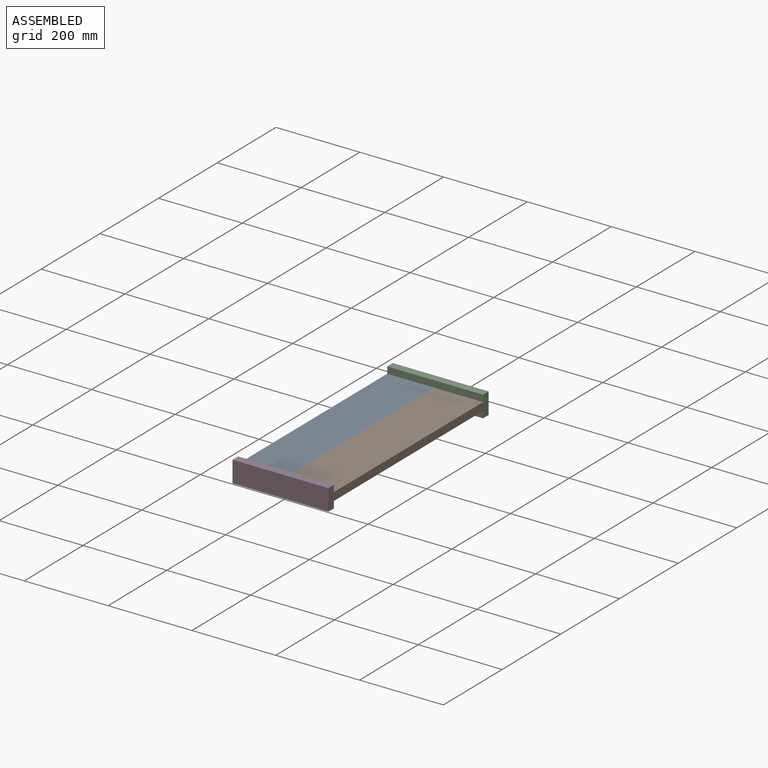
[diagram: assembled view]
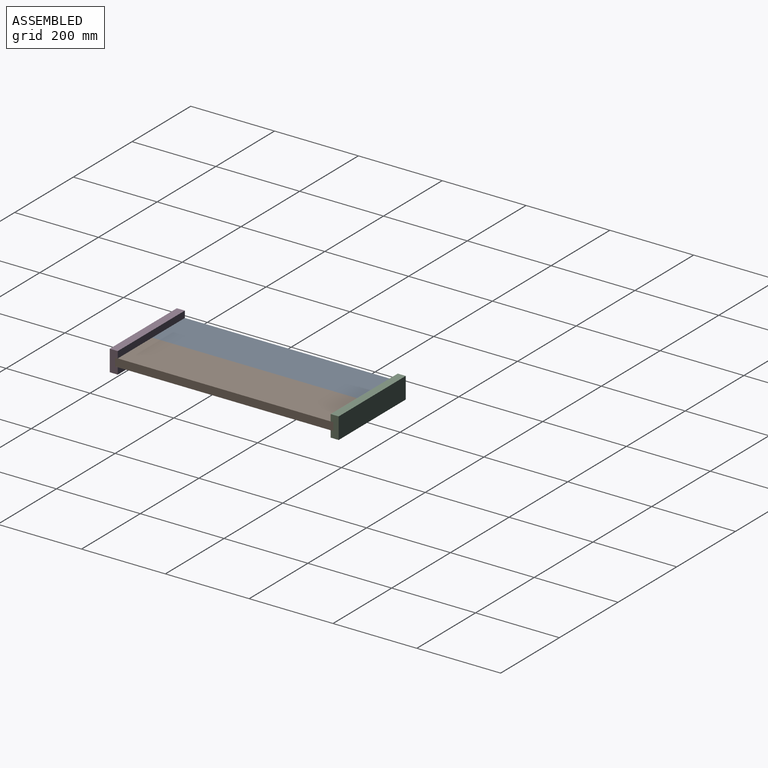
[diagram: assembled view, second angle]
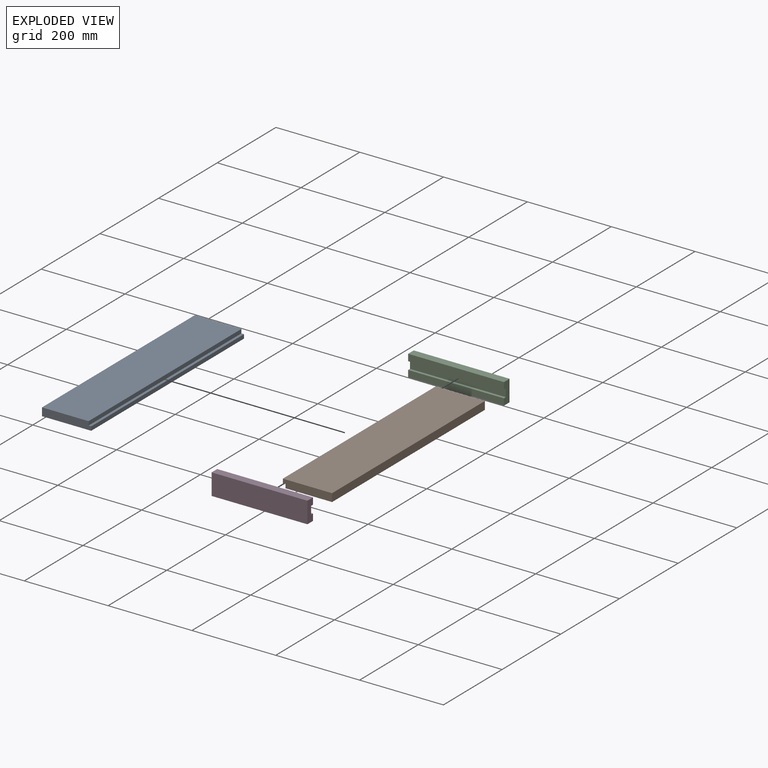
[diagram: exploded view]
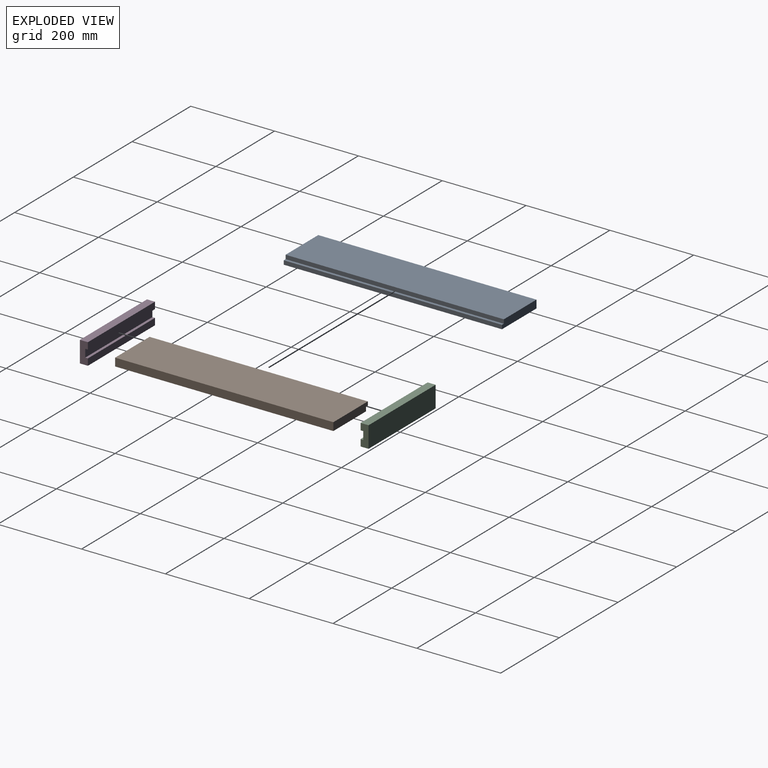
[diagram: exploded view, second angle]
ASSEMBLY  parts=4 mates=3
PART A: 8 faces, bbox 117.5x520.7x19.1 mm
  f0: plane 520.7x19.05mm, normal (1,0,0), area 9919.3mm2, adj f1,f5,f6,f7
  f1: plane 520.7x117.48mm, normal (0,0,1), area 61169.2mm2, adj f0,f2,f6,f7
  f2: plane 520.7x9.53mm, normal (-1,0,0), area 4959.7mm2, adj f1,f3,f6,f7
  f3: plane 520.7x6.35mm, normal (0,0,-1), area 3306.4mm2, adj f2,f4,f6,f7
  f4: plane 520.7x9.53mm, normal (-1,0,0), area 4959.7mm2, adj f3,f5,f6,f7
  f5: plane 520.7x111.13mm, normal (0,0,-1), area 57862.8mm2, adj f0,f4,f6,f7
  f6: plane 117.48x19.05mm, normal (0,1,0), area 2177.4mm2, adj f0,f1,f2,f3,f4,f5
  f7: plane 117.48x19.05mm, normal (0,-1,0), area 2177.4mm2, adj f0,f1,f2,f3,f4,f5
PART B: same geometry as A
PART C: 10 faces, bbox 228.6x19.1x50.8 mm
  f0: plane 228.6x19.05mm, normal (0,1,0), area 4354.8mm2, adj f1,f3,f6,f8
  f1: plane 50.8x19.05mm, normal (-1,0,0), area 846.8mm2, adj f0,f2,f4,f5,f6,f7,f8,f9
  f2: plane 228.6x19.05mm, normal (0,0,-1), area 4354.8mm2, adj f1,f3,f5,f9
  f3: plane 50.8x19.05mm, normal (1,0,0), area 846.8mm2, adj f0,f2,f4,f5,f6,f7,f8,f9
  f4: plane 228.6x19.05mm, normal (0,0,1), area 4354.8mm2, adj f1,f3,f5,f7
  f5: plane 228.6x50.8mm, normal (0,-1,0), area 11612.9mm2, adj f1,f2,f3,f4
  f6: plane 228.6x6.35mm, normal (0,0,-1), area 1451.6mm2, adj f0,f1,f3,f7
  f7: plane 228.6x15.88mm, normal (0,1,0), area 3629mm2, adj f1,f3,f4,f6
  f8: plane 228.6x6.35mm, normal (0,0,1), area 1451.6mm2, adj f0,f1,f3,f9
  f9: plane 228.6x15.88mm, normal (0,1,0), area 3629mm2, adj f1,f2,f3,f8
PART D: same geometry as C
PLACE A rot(axis=(0,1,0),180deg) t=(0,0,0)mm
PLACE B at identity
PLACE C rot(axis=(0,0,1),180deg) t=(0,520.7,0)mm
PLACE D at identity fixed
MATE fastened A.f0 <-> C.f3  axis (-1,0,0) through (-114.3,520.7,0)mm
MATE fastened B.f0 <-> D.f3  axis (1,0,0) through (114.3,0,0)mm
MATE fastened B.f6 <-> A.f6  axis (0,1,0) through (3.18,520.7,0)mm
